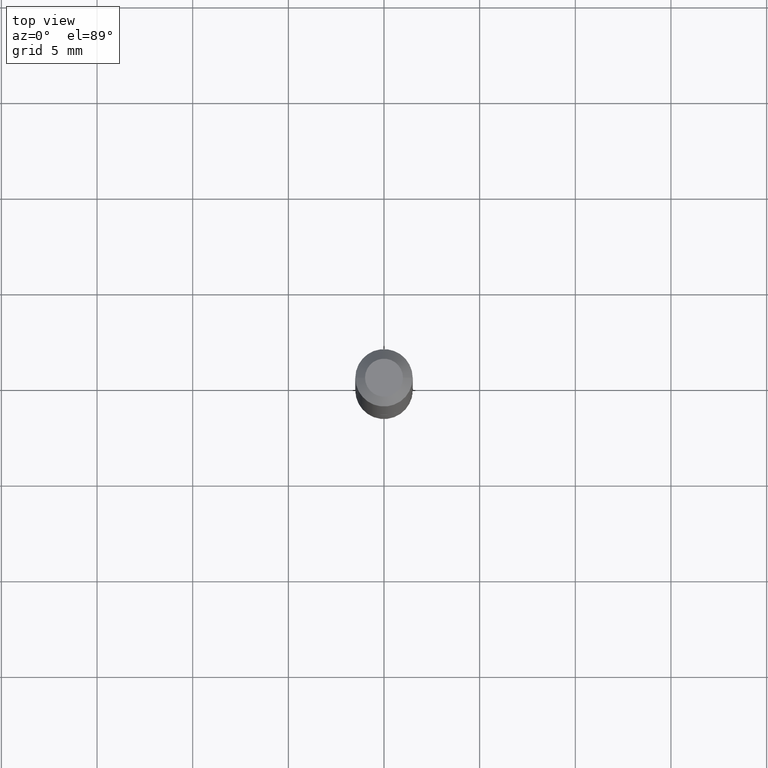
[diagram: clean part render]
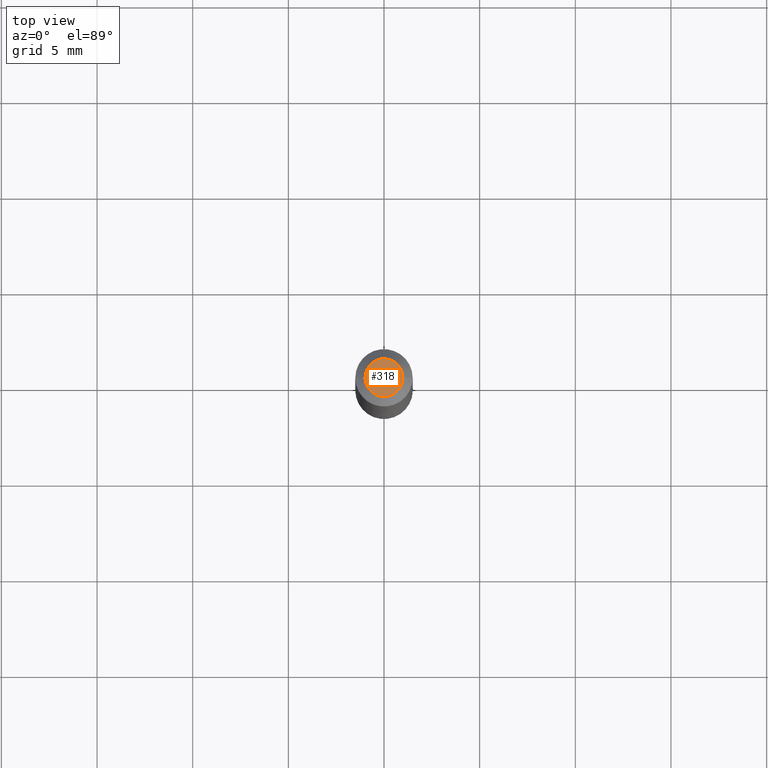
[diagram: same view with one face highlighted and labeled with its STEP entity id]
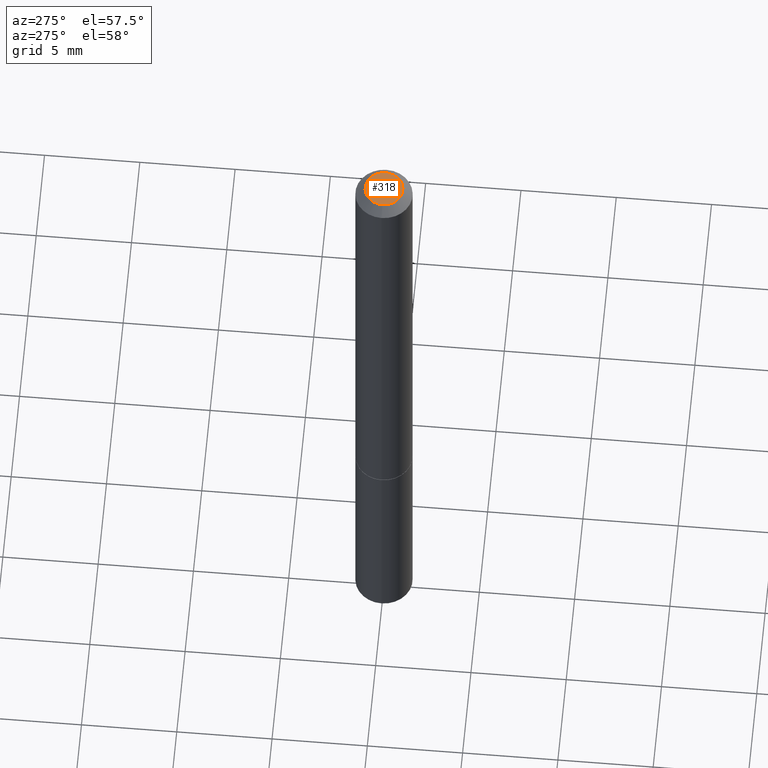
[diagram: same view with one face highlighted and labeled with its STEP entity id]
A machine part, top view. The second image highlights one B-rep face of the part: STEP entity #318.
A second angle (auxiliary view) of the same face is appended — the face is thin or edge-on in the first view.
In plain terms, the highlighted planar face has unit normal (0, -0, -1).
Its self-contained STEP definition (entity closure, byte-faithful):
#14 = DIRECTION ( 'NONE',  ( 1.000000000000000000, -6.982962677686265922E-15, 4.873707401586885104E-29 ) ) ;
#30 = CARTESIAN_POINT ( 'NONE',  ( -0.03904999999999982097, 3.075995059520783951E-16, -5.549066237130737733E-17 ) ) ;
#69 = AXIS2_PLACEMENT_3D ( 'NONE', #111, #220, #193 ) ;
#70 = CARTESIAN_POINT ( 'NONE',  ( 2.726846925636474363E-16, 0.03904999999999982097, -1.640876774674768860E-16 ) ) ;
#93 = AXIS2_PLACEMENT_3D ( 'NONE', #70, #180, #255 ) ;
#101 = VERTEX_POINT ( 'NONE', #30 ) ;
#111 = CARTESIAN_POINT ( 'NONE',  ( 1.357006838635785746E-45, -1.937446121494581442E-31, -5.549066237130534971E-17 ) ) ;
#125 = FACE_OUTER_BOUND ( 'NONE', #136, .T. ) ;
#136 = EDGE_LOOP ( 'NONE', ( #296, #242 ) ) ;
#159 = CIRCLE ( 'NONE', #166, 0.03904999999999982097 ) ;
#161 = EDGE_CURVE ( 'NONE', #101, #301, #312, .T. ) ;
#166 = AXIS2_PLACEMENT_3D ( 'NONE', #170, #293, #14 ) ;
#170 = CARTESIAN_POINT ( 'NONE',  ( 1.357006838635785746E-45, -1.937446121494581442E-31, -5.549066237130534971E-17 ) ) ;
#180 = DIRECTION ( 'NONE',  ( 2.438088387897960049E-29, -3.491481338843145188E-15, -1.000000000000000000 ) ) ;
#193 = DIRECTION ( 'NONE',  ( 1.000000000000000000, -6.982962677686265922E-15, 4.873707401586885104E-29 ) ) ;
#199 = EDGE_CURVE ( 'NONE', #301, #101, #159, .T. ) ;
#220 = DIRECTION ( 'NONE',  ( -2.445468806185136597E-29, 3.491481338843145583E-15, 1.000000000000000000 ) ) ;
#242 = ORIENTED_EDGE ( 'NONE', *, *, #199, .T. ) ;
#255 = DIRECTION ( 'NONE',  ( -1.000000000000000000, 6.982962677686265922E-15, -4.876176775795935793E-29 ) ) ;
#289 = CARTESIAN_POINT ( 'NONE',  ( 0.03904999999999982097, -3.714222401791240519E-16, -5.549066237130309406E-17 ) ) ;
#293 = DIRECTION ( 'NONE',  ( -2.445468806185136597E-29, 3.491481338843145583E-15, 1.000000000000000000 ) ) ;
#296 = ORIENTED_EDGE ( 'NONE', *, *, #161, .T. ) ;
#301 = VERTEX_POINT ( 'NONE', #289 ) ;
#312 = CIRCLE ( 'NONE', #69, 0.03904999999999982097 ) ;
#318 = ADVANCED_FACE ( 'NONE', ( #125 ), #350, .F. ) ;
#350 = PLANE ( 'NONE',  #93 ) ;